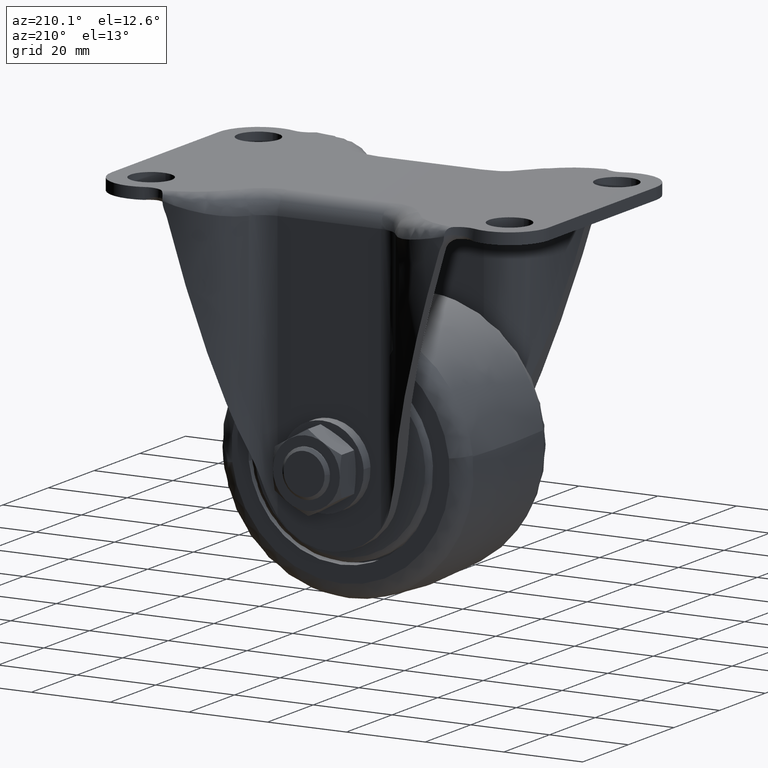
[diagram: clean part render]
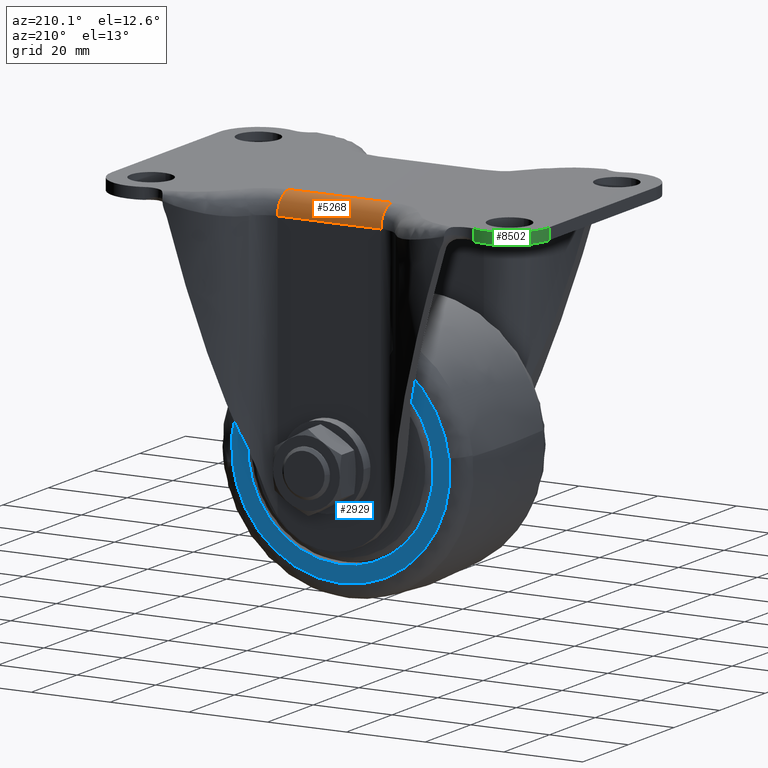
[diagram: same view with three faces highlighted in distinct colors, each labeled with its STEP entity id]
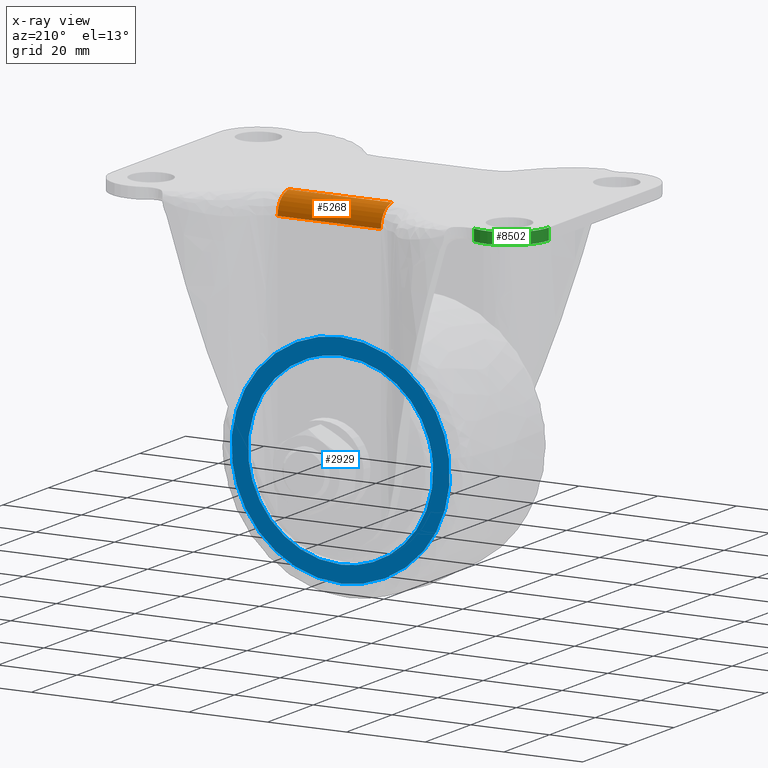
[diagram: x-ray of the same camera — body ghosted, the three highlighted faces saturated]
A machine part, auxiliary view with three faces highlighted in distinct colors.
The next image is the same camera in x-ray (body ghosted, the three faces saturated) — at least one of them is partly hidden behind the body in this view.
Their STEP definitions:

[orange] entity #5268 — the highlighted face is a freeform B-spline surface patch.
#5177=CARTESIAN_POINT('',(13.112529342704841,24.0,-5.0));
#5178=VERTEX_POINT('',#5177);
#5179=CARTESIAN_POINT('',(13.112529342704841,19.0,0.0));
#5180=VERTEX_POINT('',#5179);
#5181=CARTESIAN_POINT('',(13.112529342704841,24.0,-5.0));
#5182=CARTESIAN_POINT('',(13.112529342704841,23.999999999999996,0.0));
#5183=CARTESIAN_POINT('',(13.112529342704841,19.0,0.0));
#5191=(BOUNDED_CURVE()B_SPLINE_CURVE(2,(#5181,#5182,#5183),.UNSPECIFIED.,.F.,.U.)CURVE()GEOMETRIC_REPRESENTATION_ITEM()QUASI_UNIFORM_CURVE()RATIONAL_B_SPLINE_CURVE((1.0,0.707106781186548,1.0))REPRESENTATION_ITEM(''));
#5192=EDGE_CURVE('',#5178,#5180,#5191,.T.);
#5224=CARTESIAN_POINT('',(-13.767961226819819,18.869115258460631,-0.001713375122216));
#5225=CARTESIAN_POINT('',(13.784541606942961,18.869115258460631,-0.001713375122216));
#5226=CARTESIAN_POINT('',(-13.767961226819818,24.374924002773604,0.142461300831311));
#5227=CARTESIAN_POINT('',(13.784541606942952,24.374924002773604,0.142461300831311));
#5228=CARTESIAN_POINT('',(-13.767961226819814,23.987622396904055,-5.351600378129920));
#5229=CARTESIAN_POINT('',(13.784541606942962,23.987622396904055,-5.351600378129920));
#5237=(BOUNDED_SURFACE()B_SPLINE_SURFACE(1,2,((#5224,#5226,#5228),(#5225,#5227,#5229)),.UNSPECIFIED.,.F.,.F.,.U.)B_SPLINE_SURFACE_WITH_KNOTS((2,2),(3,3),(0.0,27.552502833762780),(0.0,8.855711720441828),.UNSPECIFIED.)GEOMETRIC_REPRESENTATION_ITEM()RATIONAL_B_SPLINE_SURFACE(((1.0,0.670944223154768,0.996392648609106),(1.0,0.670944223154768,0.996392648609106)))REPRESENTATION_ITEM('')SURFACE());
#5238=CARTESIAN_POINT('',(-13.112339000000080,24.0,-5.0));
#5239=VERTEX_POINT('',#5238);
#5240=CARTESIAN_POINT('',(-13.112339505611899,19.0,0.0));
#5241=VERTEX_POINT('',#5240);
#5242=CARTESIAN_POINT('',(-13.112339000000070,23.999999999999972,-5.0));
#5243=CARTESIAN_POINT('',(-13.112339000000066,23.999999999999972,0.0));
#5244=CARTESIAN_POINT('',(-13.112339505611899,19.0,0.0));
#5252=(BOUNDED_CURVE()B_SPLINE_CURVE(2,(#5242,#5243,#5244),.UNSPECIFIED.,.F.,.U.)CURVE()GEOMETRIC_REPRESENTATION_ITEM()QUASI_UNIFORM_CURVE()RATIONAL_B_SPLINE_CURVE((1.0,0.707106781186548,1.0))REPRESENTATION_ITEM(''));
#5253=EDGE_CURVE('',#5239,#5241,#5252,.T.);
#5254=ORIENTED_EDGE('',*,*,#5253,.T.);
#5255=CARTESIAN_POINT('',(13.112529342704841,19.0,0.0));
#5256=CARTESIAN_POINT('',(-13.112339505611899,19.0,0.0));
#5257=QUASI_UNIFORM_CURVE('',1,(#5255,#5256),.UNSPECIFIED.,.F.,.U.);
#5258=EDGE_CURVE('',#5180,#5241,#5257,.T.);
#5259=ORIENTED_EDGE('',*,*,#5258,.F.);
#5260=ORIENTED_EDGE('',*,*,#5192,.F.);
#5261=CARTESIAN_POINT('',(-13.112339000000080,24.0,-5.0));
#5262=CARTESIAN_POINT('',(13.112529342704841,24.0,-5.0));
#5263=QUASI_UNIFORM_CURVE('',1,(#5261,#5262),.UNSPECIFIED.,.F.,.U.);
#5264=EDGE_CURVE('',#5239,#5178,#5263,.T.);
#5265=ORIENTED_EDGE('',*,*,#5264,.F.);
#5266=EDGE_LOOP('',(#5254,#5259,#5260,#5265));
#5267=FACE_OUTER_BOUND('',#5266,.T.);
#5268=ADVANCED_FACE('',(#5267),#5237,.T.);

[blue] entity #2929 — the highlighted face is a freeform B-spline surface patch.
#66=CARTESIAN_POINT('',(23.335758749351569,18.999907000000061,-62.273765126311048));
#67=VERTEX_POINT('',#66);
#68=CARTESIAN_POINT('',(0.0,18.999906999999752,-35.999932000000193));
#69=VERTEX_POINT('',#68);
#70=CARTESIAN_POINT('',(23.335758749351573,18.999907000000057,-62.273765126311048));
#71=CARTESIAN_POINT('',(23.500033999999900,18.999906999999752,-60.891730075102309));
#72=CARTESIAN_POINT('',(23.500033999999900,18.999906999999752,-59.499966000000100));
#73=CARTESIAN_POINT('',(23.500033999999904,18.999906999999759,-35.999932000000200));
#74=CARTESIAN_POINT('',(0.0,18.999906999999752,-35.999932000000193));
#82=(BOUNDED_CURVE()B_SPLINE_CURVE(2,(#70,#71,#72,#73,#74),.UNSPECIFIED.,.F.,.U.)B_SPLINE_CURVE_WITH_KNOTS((3,2,3),(0.229562541602059,0.250000000000000,0.500000000000000),.UNSPECIFIED.)CURVE()GEOMETRIC_REPRESENTATION_ITEM()RATIONAL_B_SPLINE_CURVE((0.956026887640088,0.976056028101844,1.0,0.707106781186547,1.0))REPRESENTATION_ITEM(''));
#83=EDGE_CURVE('',#67,#69,#82,.T.);
#124=CARTESIAN_POINT('',(-23.456203671787978,18.999906999998061,-58.065355492681867));
#125=VERTEX_POINT('',#124);
#131=CARTESIAN_POINT('',(0.0,18.999906999999752,-35.999932000000193));
#132=CARTESIAN_POINT('',(-22.106655005113538,18.999906999999752,-35.999932000000193));
#133=CARTESIAN_POINT('',(-23.456203671787975,18.999906999998057,-58.065355492681874));
#141=(BOUNDED_CURVE()B_SPLINE_CURVE(2,(#131,#132,#133),.UNSPECIFIED.,.F.,.U.)B_SPLINE_CURVE_WITH_KNOTS((3,3),(0.500000000000000,0.739333199457977),.UNSPECIFIED.)CURVE()GEOMETRIC_REPRESENTATION_ITEM()RATIONAL_B_SPLINE_CURVE((1.0,0.719603715367324,0.976072550072792))REPRESENTATION_ITEM(''));
#142=EDGE_CURVE('',#69,#125,#141,.T.);
#165=CARTESIAN_POINT('',(0.0,18.999906999999752,-83.0));
#166=VERTEX_POINT('',#165);
#167=CARTESIAN_POINT('',(0.0,18.999906999999752,-83.0));
#168=CARTESIAN_POINT('',(20.872140025751829,18.999906999999752,-83.0));
#169=CARTESIAN_POINT('',(23.335758749351573,18.999907000000057,-62.273765126311048));
#177=(BOUNDED_CURVE()B_SPLINE_CURVE(2,(#167,#168,#169),.UNSPECIFIED.,.F.,.U.)B_SPLINE_CURVE_WITH_KNOTS((3,3),(0.0,0.229562541602059),.UNSPECIFIED.)CURVE()GEOMETRIC_REPRESENTATION_ITEM()RATIONAL_B_SPLINE_CURVE((1.0,0.731050753084704,0.956026887640088))REPRESENTATION_ITEM(''));
#178=EDGE_CURVE('',#166,#67,#177,.T.);
#180=CARTESIAN_POINT('',(-23.456203671787975,18.999906999998057,-58.065355492681874));
#181=CARTESIAN_POINT('',(-23.500033999999904,18.999906999999752,-58.781991192597530));
#182=CARTESIAN_POINT('',(-23.500033999999900,18.999906999999752,-59.499966000000100));
#183=CARTESIAN_POINT('',(-23.500033999999904,18.999906999999759,-83.0));
#184=CARTESIAN_POINT('',(0.0,18.999906999999752,-83.0));
#192=(BOUNDED_CURVE()B_SPLINE_CURVE(2,(#180,#181,#182,#183,#184),.UNSPECIFIED.,.F.,.U.)B_SPLINE_CURVE_WITH_KNOTS((3,2,3),(0.739333199457977,0.750000000000000,1.0),.UNSPECIFIED.)CURVE()GEOMETRIC_REPRESENTATION_ITEM()RATIONAL_B_SPLINE_CURVE((0.976072550072792,0.987503065819223,1.0,0.707106781186547,1.0))REPRESENTATION_ITEM(''));
#193=EDGE_CURVE('',#125,#166,#192,.T.);
#2083=CARTESIAN_POINT('',(27.508774068153830,18.999906999994209,-62.975132329921351));
#2084=VERTEX_POINT('',#2083);
#2098=CARTESIAN_POINT('',(0.0,18.999906999999801,-31.772552999999998));
#2099=VERTEX_POINT('',#2098);
#2100=CARTESIAN_POINT('',(27.508774068153823,18.999906999994206,-62.975132329921351));
#2101=CARTESIAN_POINT('',(27.727413000000109,18.999906999999798,-61.244426962776288));
#2102=CARTESIAN_POINT('',(27.727413000000102,18.999906999999801,-59.499966000000100));
#2103=CARTESIAN_POINT('',(27.727413000000109,18.999906999999798,-31.772552999999991));
#2104=CARTESIAN_POINT('',(0.0,18.999906999999801,-31.772552999999998));
#2112=(BOUNDED_CURVE()B_SPLINE_CURVE(2,(#2100,#2101,#2102,#2103,#2104),.UNSPECIFIED.,.F.,.U.)B_SPLINE_CURVE_WITH_KNOTS((3,2,3),(0.228321256480617,0.250000000000000,0.500000000000000),.UNSPECIFIED.)CURVE()GEOMETRIC_REPRESENTATION_ITEM()RATIONAL_B_SPLINE_CURVE((0.953608357590134,0.974601772123107,1.0,0.707106781186548,1.0))REPRESENTATION_ITEM(''));
#2113=EDGE_CURVE('',#2084,#2099,#2112,.T.);
#2115=CARTESIAN_POINT('',(-27.508774068153819,18.999906999994209,-56.024799670078849));
#2116=VERTEX_POINT('',#2115);
#2117=CARTESIAN_POINT('',(0.0,18.999906999999801,-31.772552999999998));
#2118=CARTESIAN_POINT('',(-24.445002818797096,18.999906999999798,-31.772552999999998));
#2119=CARTESIAN_POINT('',(-27.508774068153823,18.999906999994209,-56.024799670078849));
#2127=(BOUNDED_CURVE()B_SPLINE_CURVE(2,(#2117,#2118,#2119),.UNSPECIFIED.,.F.,.U.)B_SPLINE_CURVE_WITH_KNOTS((3,3),(0.500000000000000,0.728321256480617),.UNSPECIFIED.)CURVE()GEOMETRIC_REPRESENTATION_ITEM()RATIONAL_B_SPLINE_CURVE((1.0,0.732505009063441,0.953608357590133))REPRESENTATION_ITEM(''));
#2128=EDGE_CURVE('',#2099,#2116,#2127,.T.);
#2230=CARTESIAN_POINT('',(0.0,18.999906999999801,-87.227379000000198));
#2231=VERTEX_POINT('',#2230);
#2232=CARTESIAN_POINT('',(-27.508774068153826,18.999906999994209,-56.024799670078849));
#2233=CARTESIAN_POINT('',(-27.727413000000098,18.999906999999798,-57.755505037223898));
#2234=CARTESIAN_POINT('',(-27.727413000000102,18.999906999999801,-59.499966000000100));
#2235=CARTESIAN_POINT('',(-27.727413000000109,18.999906999999798,-87.227379000000198));
#2236=CARTESIAN_POINT('',(0.0,18.999906999999801,-87.227379000000198));
#2244=(BOUNDED_CURVE()B_SPLINE_CURVE(2,(#2232,#2233,#2234,#2235,#2236),.UNSPECIFIED.,.F.,.U.)B_SPLINE_CURVE_WITH_KNOTS((3,2,3),(0.728321256480617,0.750000000000000,1.0),.UNSPECIFIED.)CURVE()GEOMETRIC_REPRESENTATION_ITEM()RATIONAL_B_SPLINE_CURVE((0.953608357590134,0.974601772123107,1.0,0.707106781186548,1.0))REPRESENTATION_ITEM(''));
#2245=EDGE_CURVE('',#2116,#2231,#2244,.T.);
#2247=CARTESIAN_POINT('',(0.0,18.999906999999801,-87.227379000000198));
#2248=CARTESIAN_POINT('',(24.445002818797189,18.999906999999801,-87.227379000000184));
#2249=CARTESIAN_POINT('',(27.508774068153823,18.999906999994206,-62.975132329921351));
#2257=(BOUNDED_CURVE()B_SPLINE_CURVE(2,(#2247,#2248,#2249),.UNSPECIFIED.,.F.,.U.)B_SPLINE_CURVE_WITH_KNOTS((3,3),(0.0,0.228321256480617),.UNSPECIFIED.)CURVE()GEOMETRIC_REPRESENTATION_ITEM()RATIONAL_B_SPLINE_CURVE((1.0,0.732505009063440,0.953608357590134))REPRESENTATION_ITEM(''));
#2258=EDGE_CURVE('',#2231,#2084,#2257,.T.);
#2912=CARTESIAN_POINT('',(-30.494975409736131,18.999906999999752,-29.002584028211970));
#2913=CARTESIAN_POINT('',(-30.494975409736131,18.999906999999752,-89.997348963397798));
#2914=CARTESIAN_POINT('',(30.494975409736139,18.999906999999752,-29.002584028211970));
#2915=CARTESIAN_POINT('',(30.494975409736139,18.999906999999752,-89.997348963397798));
#2916=B_SPLINE_SURFACE_WITH_KNOTS('',1,1,((#2912,#2914),(#2913,#2915)),.UNSPECIFIED.,.F.,.F.,.U.,(2,2),(2,2),(0.0,60.994764935185827),(0.0,60.989950819472263),.UNSPECIFIED.);
#2917=ORIENTED_EDGE('',*,*,#2245,.F.);
#2918=ORIENTED_EDGE('',*,*,#2128,.F.);
#2919=ORIENTED_EDGE('',*,*,#2113,.F.);
#2920=ORIENTED_EDGE('',*,*,#2258,.F.);
#2921=EDGE_LOOP('',(#2917,#2918,#2919,#2920));
#2922=FACE_OUTER_BOUND('',#2921,.T.);
#2923=ORIENTED_EDGE('',*,*,#142,.T.);
#2924=ORIENTED_EDGE('',*,*,#193,.T.);
#2925=ORIENTED_EDGE('',*,*,#178,.T.);
#2926=ORIENTED_EDGE('',*,*,#83,.T.);
#2927=EDGE_LOOP('',(#2923,#2924,#2925,#2926));
#2928=FACE_BOUND('',#2927,.T.);
#2929=ADVANCED_FACE('',(#2922,#2928),#2916,.F.);

[green] entity #8502 — the highlighted face is a freeform B-spline surface patch.
#5001=CARTESIAN_POINT('',(-41.883508782540112,32.823179629200652,-2.900000000000000));
#5002=VERTEX_POINT('',#5001);
#8000=CARTESIAN_POINT('',(-41.883508782540112,32.823179629200652,0.0));
#8001=VERTEX_POINT('',#8000);
#8015=CARTESIAN_POINT('',(-55.499905000000012,23.500000000000000,0.0));
#8016=VERTEX_POINT('',#8015);
#8017=CARTESIAN_POINT('',(-41.883508782540112,32.823179629200638,0.0));
#8018=CARTESIAN_POINT('',(-46.799111859368573,34.729907707022825,0.0));
#8019=CARTESIAN_POINT('',(-51.149508429684282,31.751180587485621,0.0));
#8020=CARTESIAN_POINT('',(-55.499905000000005,28.772453467948406,0.0));
#8021=CARTESIAN_POINT('',(-55.499905000000012,23.500000000000000,0.0));
#8029=(BOUNDED_CURVE()B_SPLINE_CURVE(2,(#8017,#8018,#8019,#8020,#8021),.UNSPECIFIED.,.F.,.U.)B_SPLINE_CURVE_WITH_KNOTS((3,2,3),(0.0,0.500000000000000,1.0),.UNSPECIFIED.)CURVE()GEOMETRIC_REPRESENTATION_ITEM()RATIONAL_B_SPLINE_CURVE((1.0,0.884579092836935,1.0,0.884579092836935,1.0))REPRESENTATION_ITEM(''));
#8030=EDGE_CURVE('',#8001,#8016,#8029,.T.);
#8160=CARTESIAN_POINT('',(-55.499905000000012,23.500000000000000,-2.900000000000000));
#8161=VERTEX_POINT('',#8160);
#8162=CARTESIAN_POINT('',(-41.883508782540112,32.823179629200638,-2.900000000000000));
#8163=CARTESIAN_POINT('',(-46.799111859368573,34.729907707022825,-2.900000000000000));
#8164=CARTESIAN_POINT('',(-51.149508429684282,31.751180587485621,-2.900000000000000));
#8165=CARTESIAN_POINT('',(-55.499905000000005,28.772453467948406,-2.900000000000000));
#8166=CARTESIAN_POINT('',(-55.499905000000012,23.500000000000000,-2.900000000000000));
#8174=(BOUNDED_CURVE()B_SPLINE_CURVE(2,(#8162,#8163,#8164,#8165,#8166),.UNSPECIFIED.,.F.,.U.)B_SPLINE_CURVE_WITH_KNOTS((3,2,3),(0.0,0.500000000000000,1.0),.UNSPECIFIED.)CURVE()GEOMETRIC_REPRESENTATION_ITEM()RATIONAL_B_SPLINE_CURVE((1.0,0.884579092836935,1.0,0.884579092836935,1.0))REPRESENTATION_ITEM(''));
#8175=EDGE_CURVE('',#5002,#8161,#8174,.T.);
#8469=CARTESIAN_POINT('',(-41.883508782540112,32.823179629200652,-2.900000000000000));
#8470=CARTESIAN_POINT('',(-41.883508782540112,32.823179629200652,0.0));
#8471=QUASI_UNIFORM_CURVE('',1,(#8469,#8470),.UNSPECIFIED.,.F.,.U.);
#8472=EDGE_CURVE('',#5002,#8001,#8471,.T.);
#8478=CARTESIAN_POINT('',(-55.496478249755569,23.238230516921259,-2.972500000000001));
#8479=CARTESIAN_POINT('',(-55.496478249755569,23.238230516921259,0.074312500000000));
#8480=CARTESIAN_POINT('',(-55.915396992175708,39.236091860593184,-2.972500000000001));
#8481=CARTESIAN_POINT('',(-55.915396992175708,39.236091860593184,0.074312500000000));
#8482=CARTESIAN_POINT('',(-41.352972573437633,32.599612708765427,-2.972500000000001));
#8483=CARTESIAN_POINT('',(-41.352972573437633,32.599612708765427,0.074312500000000));
#8491=(BOUNDED_SURFACE()B_SPLINE_SURFACE(1,2,((#8478,#8480,#8482),(#8479,#8481,#8483)),.UNSPECIFIED.,.F.,.F.,.U.)B_SPLINE_SURFACE_WITH_KNOTS((2,2),(3,3),(0.0,3.046812500000001),(0.0,22.172362058110750),.UNSPECIFIED.)GEOMETRIC_REPRESENTATION_ITEM()RATIONAL_B_SPLINE_SURFACE(((1.0,0.529919264233205,1.0),(1.0,0.529919264233205,1.0)))REPRESENTATION_ITEM('')SURFACE());
#8492=ORIENTED_EDGE('',*,*,#8030,.F.);
#8493=ORIENTED_EDGE('',*,*,#8472,.F.);
#8494=ORIENTED_EDGE('',*,*,#8175,.T.);
#8495=CARTESIAN_POINT('',(-55.499905000000012,23.500000000000000,-2.900000000000000));
#8496=CARTESIAN_POINT('',(-55.499905000000012,23.500000000000000,0.0));
#8497=QUASI_UNIFORM_CURVE('',1,(#8495,#8496),.UNSPECIFIED.,.F.,.U.);
#8498=EDGE_CURVE('',#8161,#8016,#8497,.T.);
#8499=ORIENTED_EDGE('',*,*,#8498,.T.);
#8500=EDGE_LOOP('',(#8492,#8493,#8494,#8499));
#8501=FACE_OUTER_BOUND('',#8500,.T.);
#8502=ADVANCED_FACE('',(#8501),#8491,.T.);